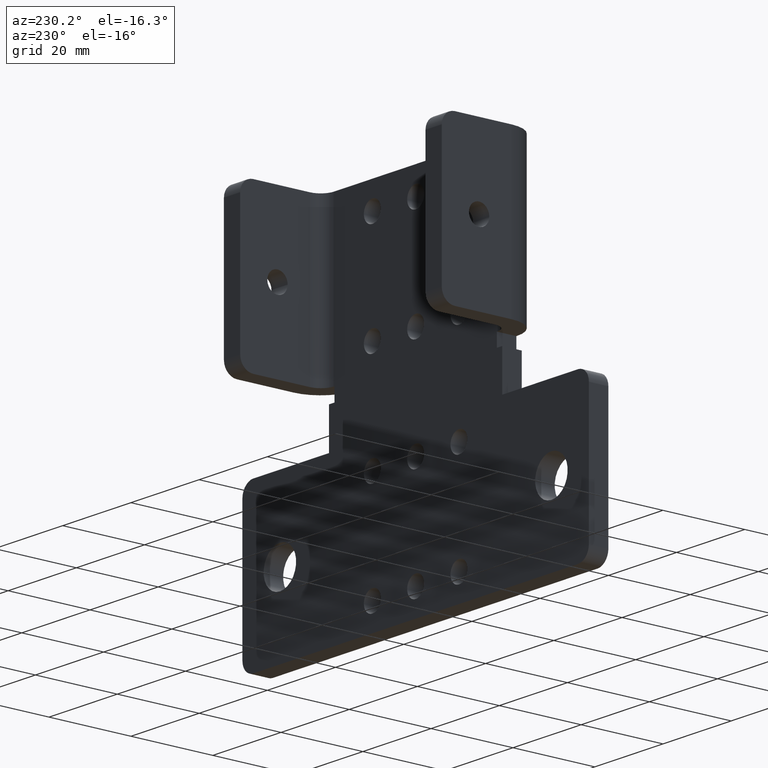
[diagram: clean part render]
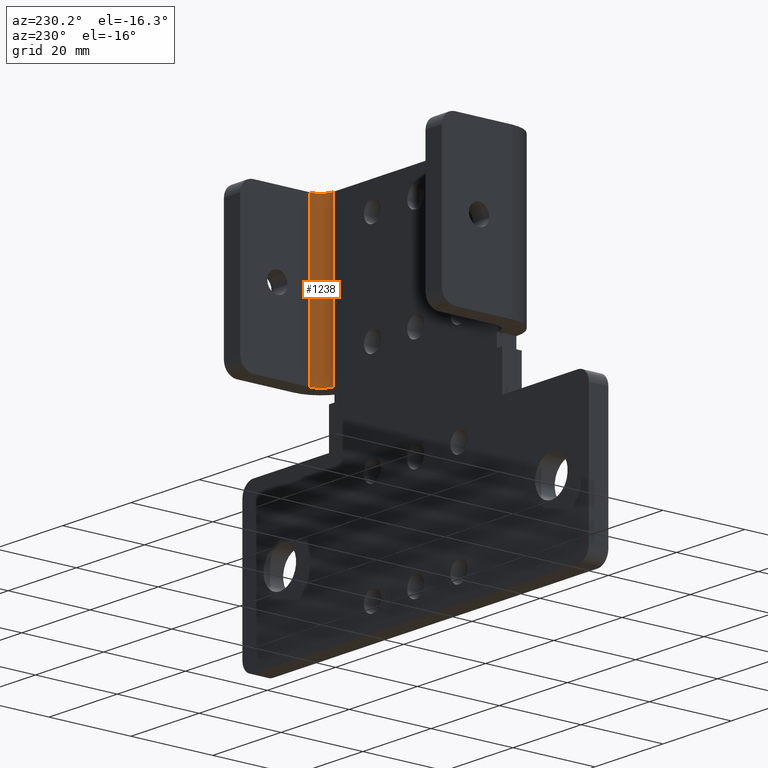
[diagram: same view with one face highlighted and labeled with its STEP entity id]
A machine part, auxiliary view. The second image highlights one B-rep face of the part: STEP entity #1238.
In plain terms, the highlighted cylindrical surface (edge-blend (fillet) strip) has radius 3.175 mm, axis along (-0, -0, -1).
Its self-contained STEP definition (entity closure, byte-faithful):
#87 = DIRECTION ( 'NONE',  ( 1.000000000000000000, -3.278217592397118229E-15, 0.0000000000000000000 ) ) ;
#107 = VECTOR ( 'NONE', #468, 39.37007874015748143 ) ;
#112 = VERTEX_POINT ( 'NONE', #200 ) ;
#197 = EDGE_CURVE ( 'NONE', #112, #1544, #1190, .T. ) ;
#200 = CARTESIAN_POINT ( 'NONE',  ( 2.945000000000000284, 0.1874999999999999722, 0.4999999999999996114 ) ) ;
#205 = CARTESIAN_POINT ( 'NONE',  ( 3.070000000000000284, 0.3124999999999994449, 1.999999999999999778 ) ) ;
#222 = CIRCLE ( 'NONE', #544, 0.1249999999999999029 ) ;
#248 = CARTESIAN_POINT ( 'NONE',  ( 3.070000000000000284, 0.3124999999999994449, 0.4999999999999996114 ) ) ;
#253 = DIRECTION ( 'NONE',  ( -1.000000000000000000, 0.0000000000000000000, 0.0000000000000000000 ) ) ;
#400 = EDGE_CURVE ( 'NONE', #912, #112, #222, .T. ) ;
#422 = EDGE_CURVE ( 'NONE', #1544, #1226, #463, .T. ) ;
#427 = VECTOR ( 'NONE', #1708, 39.37007874015748143 ) ;
#444 = CARTESIAN_POINT ( 'NONE',  ( 3.070000000000000284, 0.3124999999999994449, 1.999999999999999778 ) ) ;
#463 = CIRCLE ( 'NONE', #659, 0.1249999999999999029 ) ;
#468 = DIRECTION ( 'NONE',  ( 0.0000000000000000000, 0.0000000000000000000, 1.000000000000000000 ) ) ;
#530 = DIRECTION ( 'NONE',  ( 0.0000000000000000000, 0.0000000000000000000, 1.000000000000000000 ) ) ;
#544 = AXIS2_PLACEMENT_3D ( 'NONE', #1716, #547, #1701 ) ;
#547 = DIRECTION ( 'NONE',  ( -0.0000000000000000000, -0.0000000000000000000, -1.000000000000000000 ) ) ;
#574 = ORIENTED_EDGE ( 'NONE', *, *, #197, .T. ) ;
#624 = EDGE_LOOP ( 'NONE', ( #574, #1287, #1222, #953 ) ) ;
#659 = AXIS2_PLACEMENT_3D ( 'NONE', #1050, #530, #253 ) ;
#727 = EDGE_CURVE ( 'NONE', #1226, #912, #997, .T. ) ;
#793 = DIRECTION ( 'NONE',  ( -0.0000000000000000000, -0.0000000000000000000, -1.000000000000000000 ) ) ;
#890 = CARTESIAN_POINT ( 'NONE',  ( 2.945000000000000284, 0.3124999999999998890, 0.4999999999999993339 ) ) ;
#912 = VERTEX_POINT ( 'NONE', #248 ) ;
#953 = ORIENTED_EDGE ( 'NONE', *, *, #400, .T. ) ;
#997 = LINE ( 'NONE', #205, #427 ) ;
#1002 = CARTESIAN_POINT ( 'NONE',  ( 2.945000000000000284, 0.1874999999999999722, 0.4999999999999993339 ) ) ;
#1050 = CARTESIAN_POINT ( 'NONE',  ( 2.945000000000000284, 0.3124999999999998890, 1.999999999999999778 ) ) ;
#1113 = CYLINDRICAL_SURFACE ( 'NONE', #1397, 0.1249999999999999029 ) ;
#1190 = LINE ( 'NONE', #1002, #107 ) ;
#1222 = ORIENTED_EDGE ( 'NONE', *, *, #727, .T. ) ;
#1226 = VERTEX_POINT ( 'NONE', #444 ) ;
#1238 = ADVANCED_FACE ( 'NONE', ( #1543 ), #1113, .F. ) ;
#1287 = ORIENTED_EDGE ( 'NONE', *, *, #422, .T. ) ;
#1397 = AXIS2_PLACEMENT_3D ( 'NONE', #890, #793, #87 ) ;
#1510 = CARTESIAN_POINT ( 'NONE',  ( 2.945000000000000284, 0.1874999999999999722, 1.999999999999999778 ) ) ;
#1543 = FACE_OUTER_BOUND ( 'NONE', #624, .T. ) ;
#1544 = VERTEX_POINT ( 'NONE', #1510 ) ;
#1701 = DIRECTION ( 'NONE',  ( -1.000000000000000000, 0.0000000000000000000, 0.0000000000000000000 ) ) ;
#1708 = DIRECTION ( 'NONE',  ( 2.342433603417279323E-31, -8.034114927542046146E-46, -1.000000000000000000 ) ) ;
#1716 = CARTESIAN_POINT ( 'NONE',  ( 2.945000000000000284, 0.3124999999999998890, 0.4999999999999996114 ) ) ;